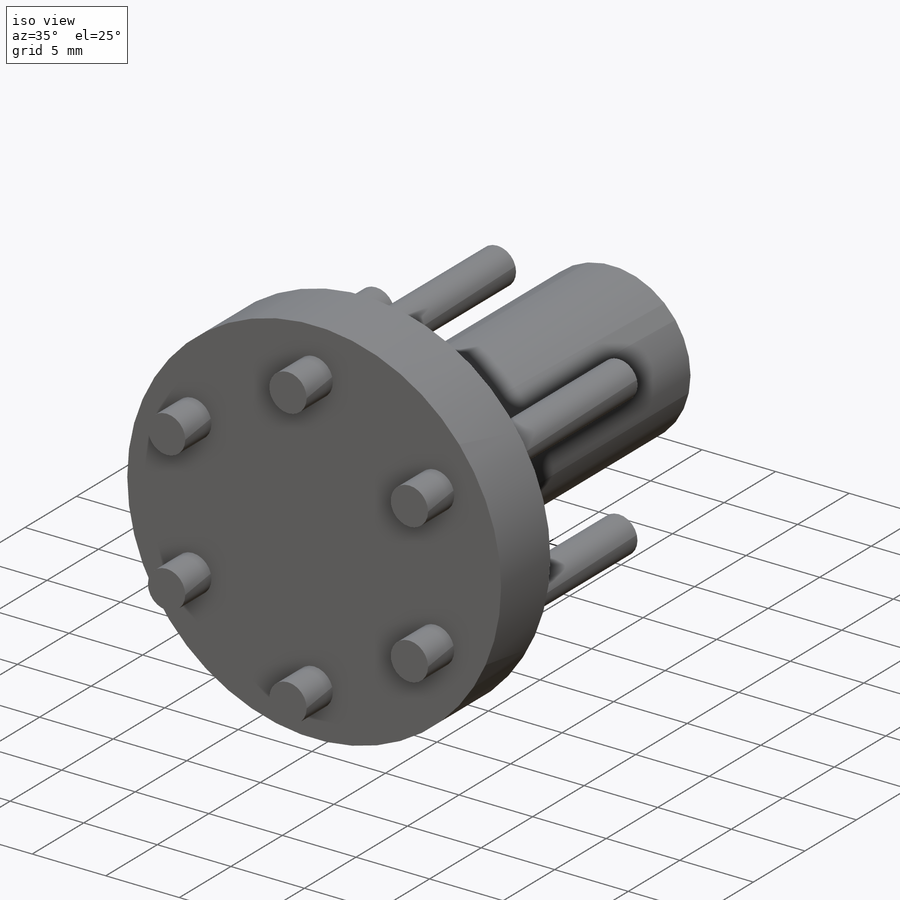
[diagram: iso view]
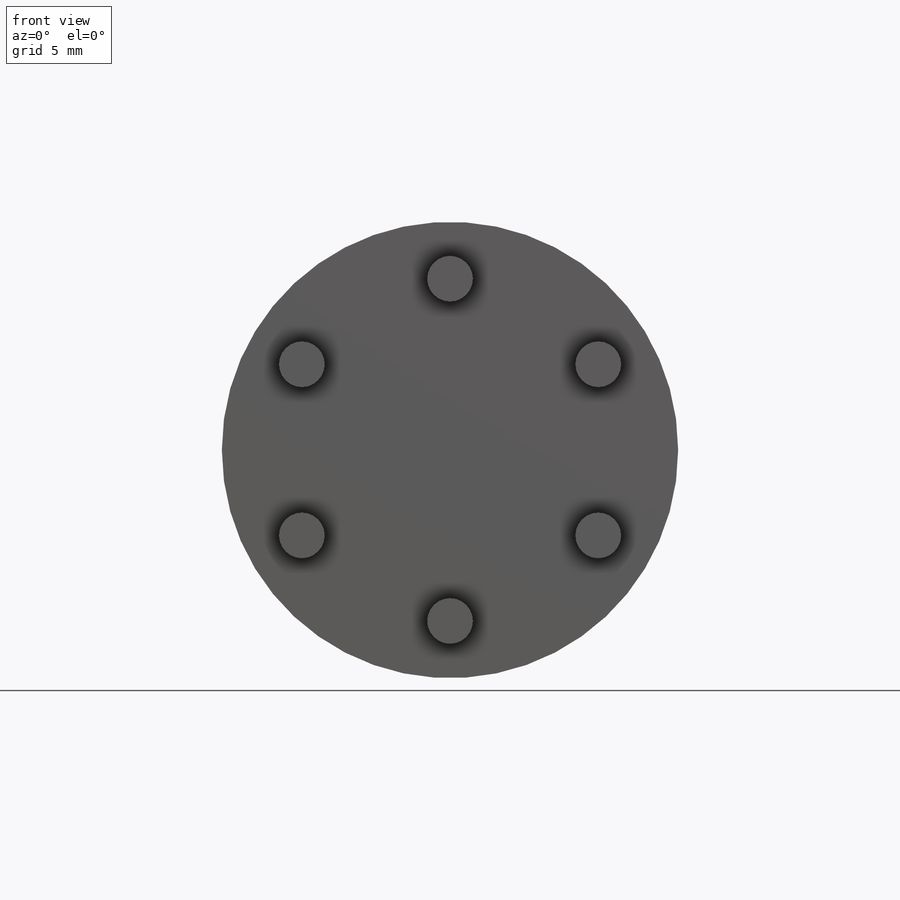
[diagram: front view]
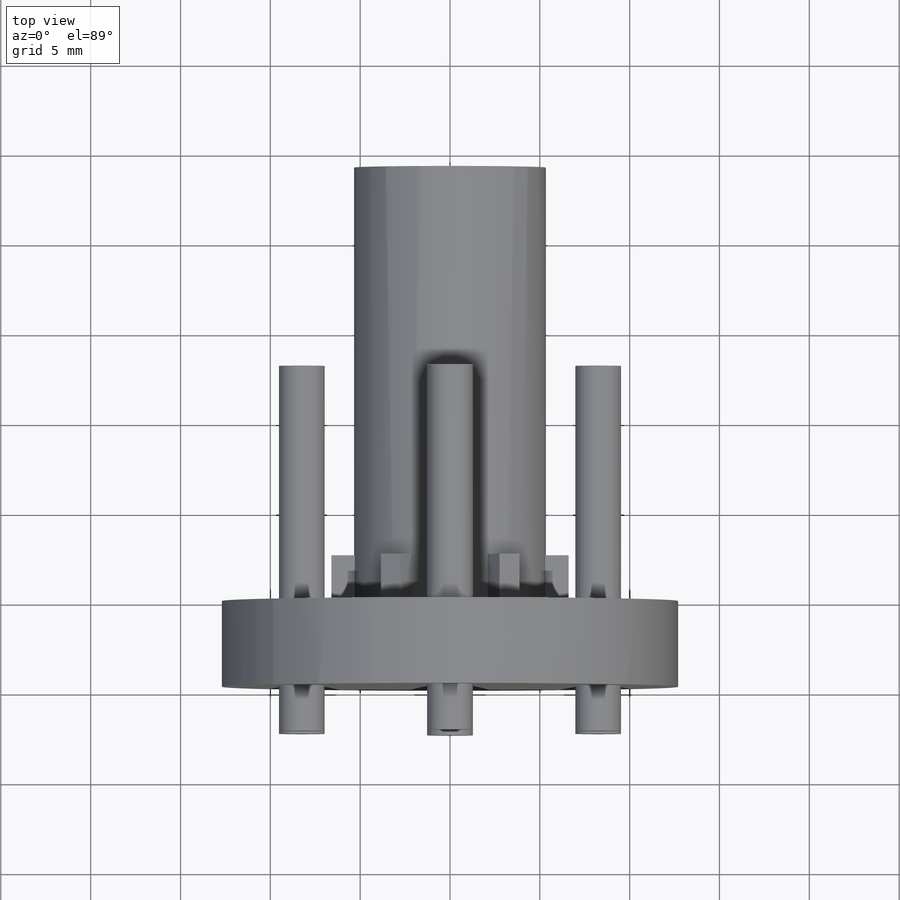
[diagram: top view]
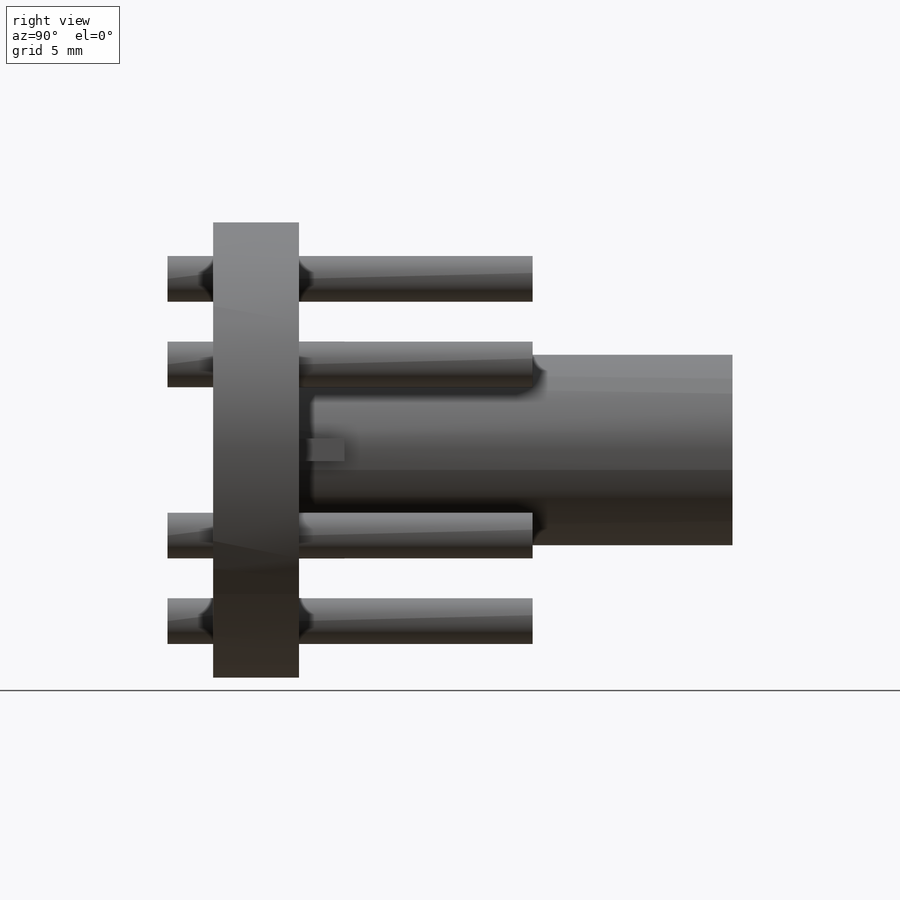
[diagram: right view]
SOLIDWORKS PART (.sldprt)
format: sldprt  version: not decoded by parser v0  size: 246,784 bytes
history: native  units: mm
features: sketch x5, extrude x4, material x1 (+13 scaffold rows collapsed)
feature tree (23):
  scaffold x13  (default folders/planes/origin — collapsed)
  material  "Material <not specified>"
  sketch  "Sketch1"  dims[D1=25.4mm]
  extrude  "Boss-Extrude1"  Depth=4.7752mm
  sketch  "Sketch2"  dims[D1=10.668mm]
  extrude  "Boss-Extrude2"  Depth=24.13mm
  sketch  "Sketch3"  dims[D1=19.05mm D2=2.54mm D3=6.0]
  extrude  "Boss-Extrude3"  Depth=2.54mm
  sketch  "Sketch4"
  sketch  "Sketch6"  dims[c1.D1=~8.980256mm c2.D1=30.0deg c2.D2=1.27mm c2.D3=2.54mm c2.D4=6.0]
  extrude  "Boss-Extrude4"  Depth=2.54mm
decode coverage: 8 of 9 modeling features carry decoded parameters
note: ~ marks probable driven/reference dimensions
note: suppression state not decoded; provenance and decode notes live in map.json
